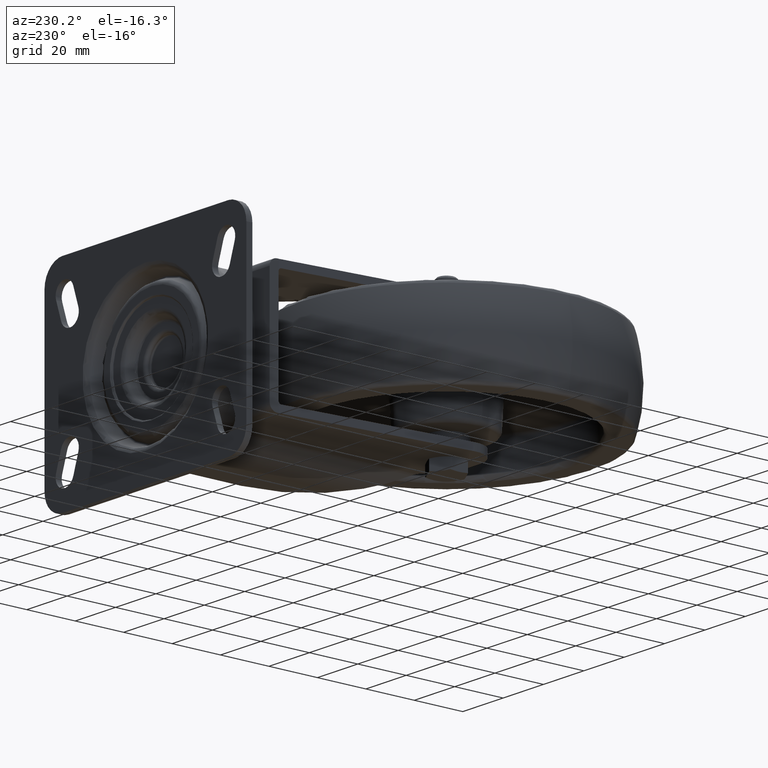
[diagram: clean part render]
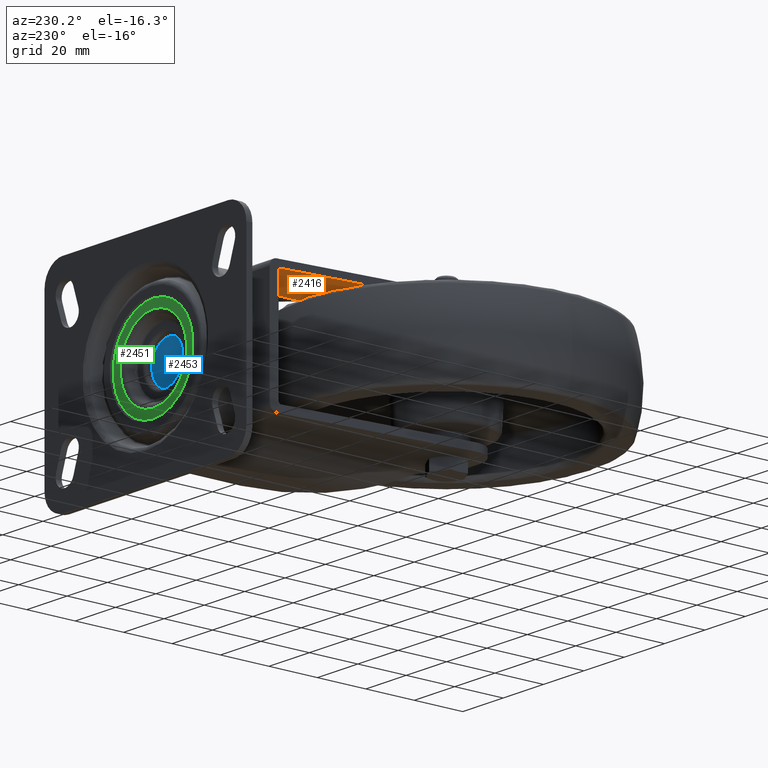
[diagram: same view with three faces highlighted in distinct colors, each labeled with its STEP entity id]
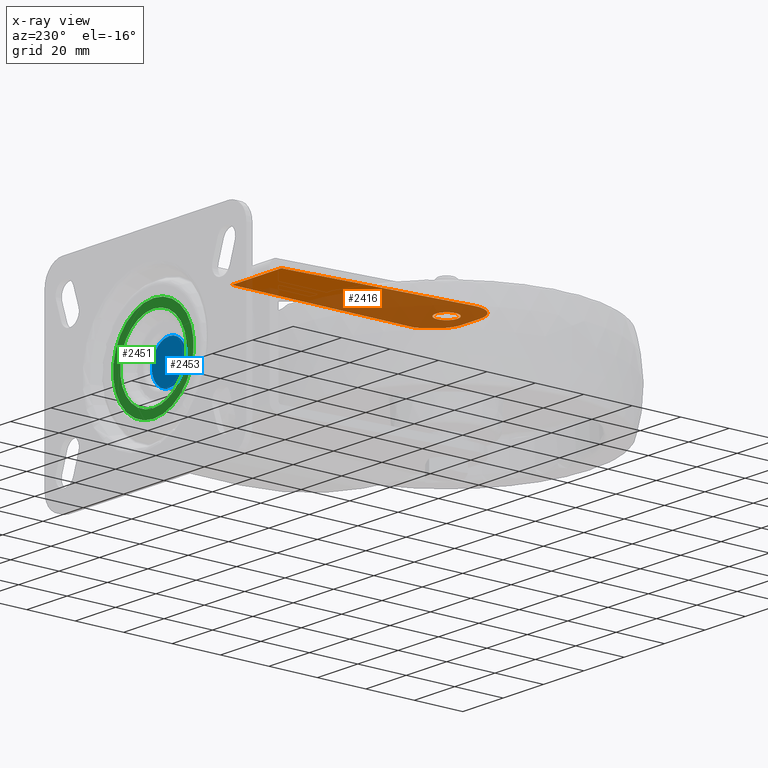
[diagram: x-ray of the same camera — body ghosted, the three highlighted faces saturated]
A machine part, auxiliary view with three faces highlighted in distinct colors.
The next image is the same camera in x-ray (body ghosted, the three faces saturated) — at least one of them is partly hidden behind the body in this view.
Their STEP definitions:

[orange] entity #2416 — the highlighted planar face has unit normal (0, 0, 1).
#159=FACE_BOUND('',#351,.T.);
#199=FACE_OUTER_BOUND('',#350,.T.);
#350=EDGE_LOOP('',(#1580,#1581,#1582,#1583,#1584,#1585,#1586));
#351=EDGE_LOOP('',(#1587));
#512=CIRCLE('',#2579,4.5);
#529=CIRCLE('',#2609,10.);
#530=CIRCLE('',#2610,10.);
#702=LINE('',#4014,#831);
#703=LINE('',#4017,#832);
#704=LINE('',#4019,#833);
#705=LINE('',#4023,#834);
#706=LINE('',#4026,#835);
#831=VECTOR('',#2986,10.);
#832=VECTOR('',#2989,76.70179871917);
#833=VECTOR('',#2990,6.13083250682221);
#834=VECTOR('',#2993,9.40000000000001);
#835=VECTOR('',#2996,75.4114712759272);
#942=VERTEX_POINT('',#3671);
#979=VERTEX_POINT('',#3996);
#982=VERTEX_POINT('',#4001);
#983=VERTEX_POINT('',#4016);
#984=VERTEX_POINT('',#4018);
#985=VERTEX_POINT('',#4020);
#986=VERTEX_POINT('',#4022);
#987=VERTEX_POINT('',#4024);
#1164=EDGE_CURVE('',#942,#942,#512,.T.);
#1215=EDGE_CURVE('',#982,#979,#702,.T.);
#1216=EDGE_CURVE('',#983,#982,#703,.T.);
#1217=EDGE_CURVE('',#984,#983,#704,.T.);
#1218=EDGE_CURVE('',#985,#984,#529,.T.);
#1219=EDGE_CURVE('',#986,#985,#705,.T.);
#1220=EDGE_CURVE('',#987,#986,#530,.T.);
#1221=EDGE_CURVE('',#979,#987,#706,.T.);
#1580=ORIENTED_EDGE('',*,*,#1215,.F.);
#1581=ORIENTED_EDGE('',*,*,#1216,.F.);
#1582=ORIENTED_EDGE('',*,*,#1217,.F.);
#1583=ORIENTED_EDGE('',*,*,#1218,.F.);
#1584=ORIENTED_EDGE('',*,*,#1219,.F.);
#1585=ORIENTED_EDGE('',*,*,#1220,.F.);
#1586=ORIENTED_EDGE('',*,*,#1221,.F.);
#1587=ORIENTED_EDGE('',*,*,#1164,.T.);
#2200=PLANE('',#2608);
#2416=ADVANCED_FACE('',(#199,#159),#2200,.F.);
#2579=AXIS2_PLACEMENT_3D('',#3672,#2907,#2908);
#2608=AXIS2_PLACEMENT_3D('',#4015,#2987,#2988);
#2609=AXIS2_PLACEMENT_3D('',#4021,#2991,#2992);
#2610=AXIS2_PLACEMENT_3D('',#4025,#2994,#2995);
#2907=DIRECTION('center_axis',(0.,0.,1.));
#2908=DIRECTION('ref_axis',(1.,0.,0.));
#2986=DIRECTION('',(-1.,0.,0.));
#2987=DIRECTION('center_axis',(0.,0.,1.));
#2988=DIRECTION('ref_axis',(1.,0.,0.));
#2989=DIRECTION('',(0.,1.,0.));
#2990=DIRECTION('',(0.572744865832878,0.819733687646225,0.));
#2991=DIRECTION('center_axis',(0.,0.,1.));
#2992=DIRECTION('ref_axis',(0.819733687646225,-0.572744865832877,0.));
#2993=DIRECTION('',(1.,0.,0.));
#2994=DIRECTION('center_axis',(0.,0.,1.));
#2995=DIRECTION('ref_axis',(0.,-1.,0.));
#2996=DIRECTION('',(-0.0883276068474495,-0.996091478664787,0.));
#3671=CARTESIAN_POINT('',(-4.5,-5.5107285922007E-16,22.5));
#3672=CARTESIAN_POINT('Origin',(0.,0.,22.5));
#3996=CARTESIAN_POINT('',(-8.08867419181807,75.,22.5));
#4001=CARTESIAN_POINT('',(16.408739718026,75.,22.5));
#4014=CARTESIAN_POINT('',(25.,75.,22.5));
#4015=CARTESIAN_POINT('Origin',(25.,76.,22.5));
#4016=CARTESIAN_POINT('',(16.408739718026,-0.701798719170029,22.5));
#4017=CARTESIAN_POINT('',(16.408739718026,-0.701798719170029,22.5));
#4018=CARTESIAN_POINT('',(12.8973368764623,-5.72744865832875,22.5));
#4019=CARTESIAN_POINT('',(12.8973368764621,-5.72744865832865,22.5));
#4020=CARTESIAN_POINT('',(4.7,-9.99999999999999,22.5));
#4021=CARTESIAN_POINT('Origin',(4.7,2.48689957516035E-14,22.5));
#4022=CARTESIAN_POINT('',(-4.70000000000001,-10.,22.5));
#4023=CARTESIAN_POINT('',(-4.70000000000001,-9.99999999999999,22.5));
#4024=CARTESIAN_POINT('',(-14.6609147866479,0.883276068474499,22.5));
#4025=CARTESIAN_POINT('Origin',(-4.70000000000001,1.06581410364015E-14,
22.5));
#4026=CARTESIAN_POINT('',(-8.00000000000002,76.,22.5));

[blue] entity #2453 — the highlighted planar face has unit normal (0, 1, 0).
#236=FACE_OUTER_BOUND('',#392,.T.);
#392=EDGE_LOOP('',(#1758));
#535=CIRCLE('',#2623,8.5938611699158);
#993=VERTEX_POINT('',#4063);
#1235=EDGE_CURVE('',#993,#993,#535,.T.);
#1758=ORIENTED_EDGE('',*,*,#1235,.T.);
#2214=PLANE('',#2691);
#2453=ADVANCED_FACE('',(#236),#2214,.T.);
#2623=AXIS2_PLACEMENT_3D('',#4064,#3028,#3029);
#2691=AXIS2_PLACEMENT_3D('',#4175,#3179,#3180);
#3028=DIRECTION('center_axis',(0.,1.,0.));
#3029=DIRECTION('ref_axis',(1.,0.,0.));
#3179=DIRECTION('center_axis',(0.,1.,0.));
#3180=DIRECTION('ref_axis',(0.,0.,1.));
#4063=CARTESIAN_POINT('',(37.,83.7,-8.5938611699158));
#4064=CARTESIAN_POINT('Origin',(37.,83.7,0.));
#4175=CARTESIAN_POINT('Origin',(41.2969305849579,83.7,-1.05240969925463E-15));

[green] entity #2451 — the highlighted planar face has unit normal (0, 1, 0).
#162=FACE_BOUND('',#389,.T.);
#234=FACE_OUTER_BOUND('',#388,.T.);
#388=EDGE_LOOP('',(#1754));
#389=EDGE_LOOP('',(#1755));
#547=CIRCLE('',#2639,16.449140521615);
#548=CIRCLE('',#2641,19.975);
#1001=VERTEX_POINT('',#4087);
#1002=VERTEX_POINT('',#4091);
#1248=EDGE_CURVE('',#1001,#1001,#547,.T.);
#1249=EDGE_CURVE('',#1002,#1002,#548,.T.);
#1754=ORIENTED_EDGE('',*,*,#1249,.T.);
#1755=ORIENTED_EDGE('',*,*,#1248,.F.);
#2212=PLANE('',#2689);
#2451=ADVANCED_FACE('',(#234,#162),#2212,.T.);
#2639=AXIS2_PLACEMENT_3D('',#4089,#3061,#3062);
#2641=AXIS2_PLACEMENT_3D('',#4092,#3065,#3066);
#2689=AXIS2_PLACEMENT_3D('',#4173,#3175,#3176);
#3061=DIRECTION('center_axis',(0.,1.,0.));
#3062=DIRECTION('ref_axis',(1.,0.,0.));
#3065=DIRECTION('center_axis',(0.,1.,0.));
#3066=DIRECTION('ref_axis',(1.,0.,0.));
#3175=DIRECTION('center_axis',(0.,1.,0.));
#3176=DIRECTION('ref_axis',(0.,0.,1.));
#4087=CARTESIAN_POINT('',(37.,90.2,-16.449140521615));
#4089=CARTESIAN_POINT('Origin',(37.,90.2,0.));
#4091=CARTESIAN_POINT('',(37.,90.2,-19.975));
#4092=CARTESIAN_POINT('Origin',(37.,90.2,0.));
#4173=CARTESIAN_POINT('Origin',(55.2120702608075,90.2,-4.46052339152888E-15));